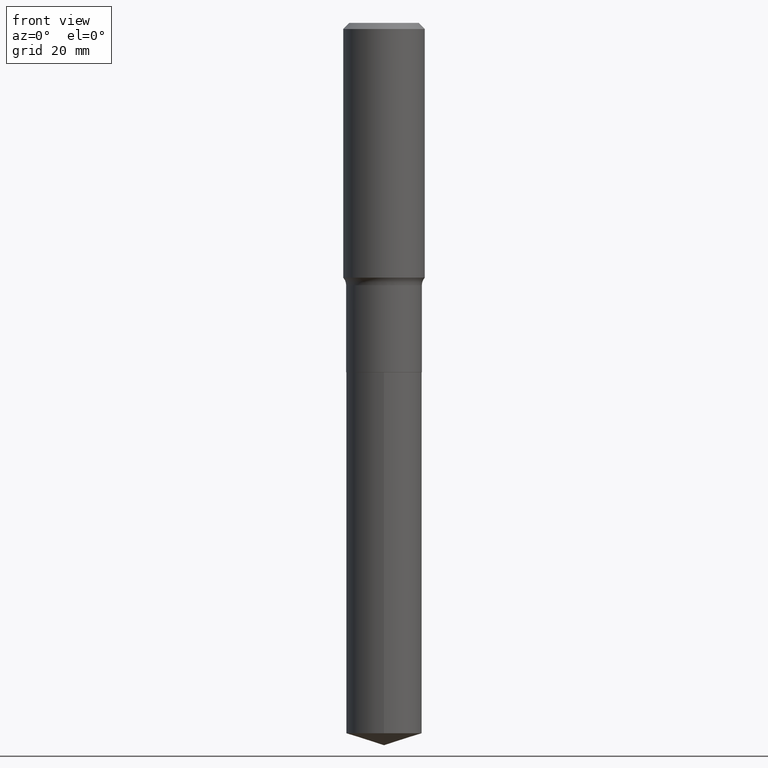
[diagram: clean part render]
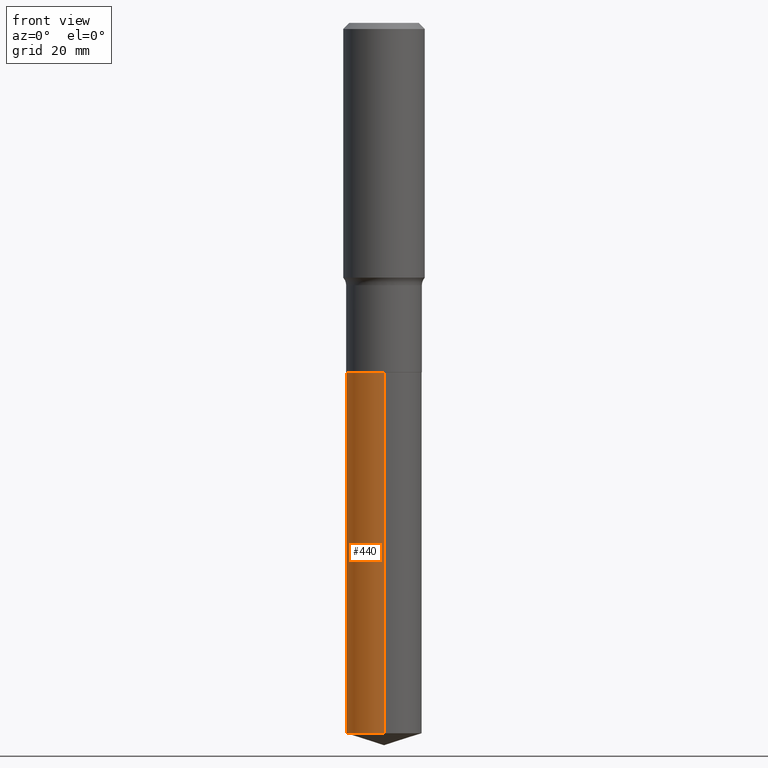
[diagram: same view with one face highlighted and labeled with its STEP entity id]
A machine part, front view. The second image highlights one B-rep face of the part: STEP entity #440.
In plain terms, the highlighted cylindrical surface (partial cylindrical patch) has radius 6.4999 mm, axis along (-0, 0, 1).
Its self-contained STEP definition (entity closure, byte-faithful):
#1 = EDGE_CURVE ( 'NONE', #43, #151, #294, .T. ) ;
#20 = LINE ( 'NONE', #174, #362 ) ;
#21 = CYLINDRICAL_SURFACE ( 'NONE', #254, 0.2559000000000000163 ) ;
#34 = EDGE_CURVE ( 'NONE', #43, #192, #468, .T. ) ;
#43 = VERTEX_POINT ( 'NONE', #54 ) ;
#47 = ORIENTED_EDGE ( 'NONE', *, *, #1, .T. ) ;
#54 = CARTESIAN_POINT ( 'NONE',  ( 1.818278860810213243E-15, 0.2558999999999831965, -4.801215039925869732 ) ) ;
#81 = DIRECTION ( 'NONE',  ( -2.445245112378801486E-29, 3.491801681105678246E-15, 1.000000000000000000 ) ) ;
#99 = CARTESIAN_POINT ( 'NONE',  ( 1.818278860810154079E-15, 0.2558999999999917452, -2.362200000000000522 ) ) ;
#101 = CARTESIAN_POINT ( 'NONE',  ( -1.786940149219797805E-15, -0.2559000000000167252, -4.801215039925867956 ) ) ;
#122 = DIRECTION ( 'NONE',  ( -6.982962677686266711E-15, -1.000000000000000000, 3.202635397027271900E-15 ) ) ;
#127 = EDGE_CURVE ( 'NONE', #192, #223, #238, .T. ) ;
#133 = DIRECTION ( 'NONE',  ( -2.445245112378801767E-29, 3.491801681105678246E-15, 1.000000000000000000 ) ) ;
#135 = AXIS2_PLACEMENT_3D ( 'NONE', #314, #434, #388 ) ;
#139 = DIRECTION ( 'NONE',  ( -2.445245112378801767E-29, 3.491801681105678246E-15, 1.000000000000000000 ) ) ;
#141 = EDGE_CURVE ( 'NONE', #151, #223, #20, .T. ) ;
#147 = AXIS2_PLACEMENT_3D ( 'NONE', #237, #165, #306 ) ;
#151 = VERTEX_POINT ( 'NONE', #101 ) ;
#165 = DIRECTION ( 'NONE',  ( -2.445245112378801486E-29, 3.491801681105678246E-15, 1.000000000000000000 ) ) ;
#174 = CARTESIAN_POINT ( 'NONE',  ( -1.786940149219857758E-15, -0.2559000000000082875, -2.362199999999998745 ) ) ;
#192 = VERTEX_POINT ( 'NONE', #400 ) ;
#205 = VECTOR ( 'NONE', #133, 39.37007874015748143 ) ;
#220 = EDGE_LOOP ( 'NONE', ( #384, #47, #411, #278 ) ) ;
#223 = VERTEX_POINT ( 'NONE', #289 ) ;
#237 = CARTESIAN_POINT ( 'NONE',  ( 1.174067601936764775E-28, -1.676413403527045995E-14, -4.801215039925868844 ) ) ;
#238 = CIRCLE ( 'NONE', #135, 0.2559000000000000163 ) ;
#254 = AXIS2_PLACEMENT_3D ( 'NONE', #342, #81, #122 ) ;
#266 = FACE_OUTER_BOUND ( 'NONE', #220, .T. ) ;
#278 = ORIENTED_EDGE ( 'NONE', *, *, #127, .F. ) ;
#289 = CARTESIAN_POINT ( 'NONE',  ( -1.786940149219857758E-15, -0.2559000000000082875, -2.362199999999998745 ) ) ;
#294 = CIRCLE ( 'NONE', #147, 0.2559000000000000163 ) ;
#306 = DIRECTION ( 'NONE',  ( -6.982962677686266711E-15, -1.000000000000000000, 4.270180529369696392E-15 ) ) ;
#314 = CARTESIAN_POINT ( 'NONE',  ( 5.776686413970529753E-29, -8.247577218615278049E-15, -2.362199999999999633 ) ) ;
#342 = CARTESIAN_POINT ( 'NONE',  ( 5.776686413970529753E-29, -8.247577218615278049E-15, -2.362199999999999633 ) ) ;
#362 = VECTOR ( 'NONE', #139, 39.37007874015748143 ) ;
#384 = ORIENTED_EDGE ( 'NONE', *, *, #34, .F. ) ;
#388 = DIRECTION ( 'NONE',  ( -6.982962677686266711E-15, -1.000000000000000000, 3.202635397027271900E-15 ) ) ;
#400 = CARTESIAN_POINT ( 'NONE',  ( 1.818278860810214426E-15, 0.2558999999999917452, -2.362200000000000522 ) ) ;
#411 = ORIENTED_EDGE ( 'NONE', *, *, #141, .T. ) ;
#434 = DIRECTION ( 'NONE',  ( -2.445245112378801486E-29, 3.491801681105678246E-15, 1.000000000000000000 ) ) ;
#440 = ADVANCED_FACE ( 'NONE', ( #266 ), #21, .T. ) ;
#468 = LINE ( 'NONE', #99, #205 ) ;